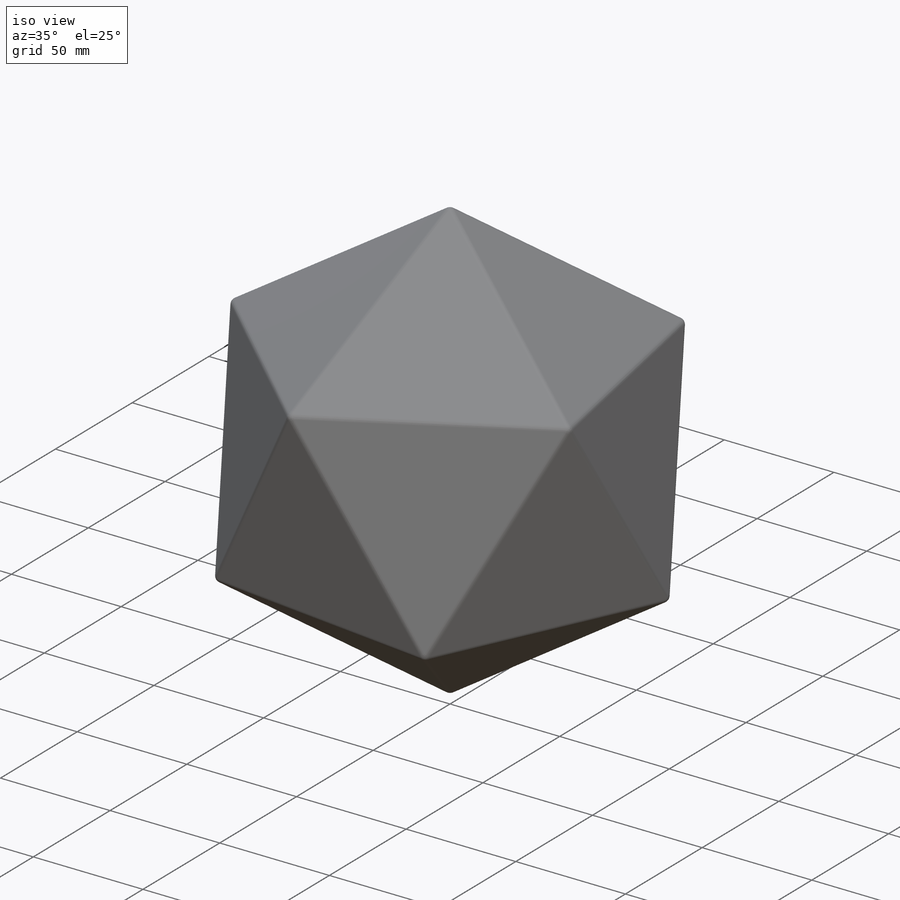
[diagram: iso view]
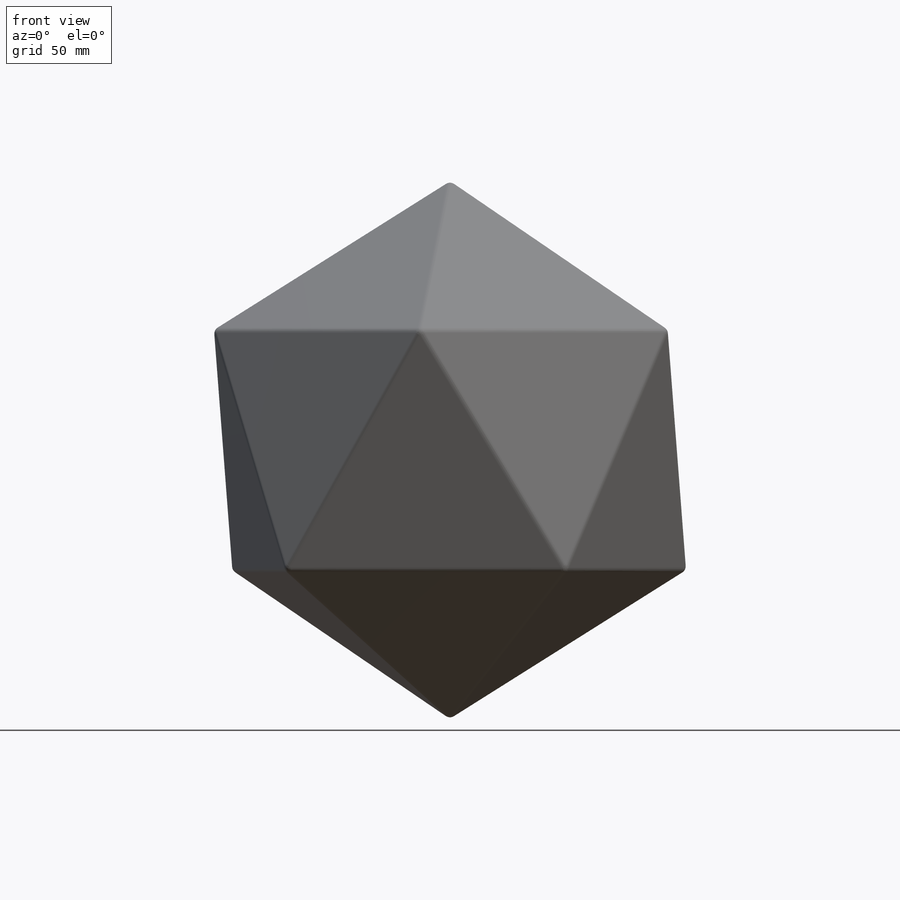
[diagram: front view]
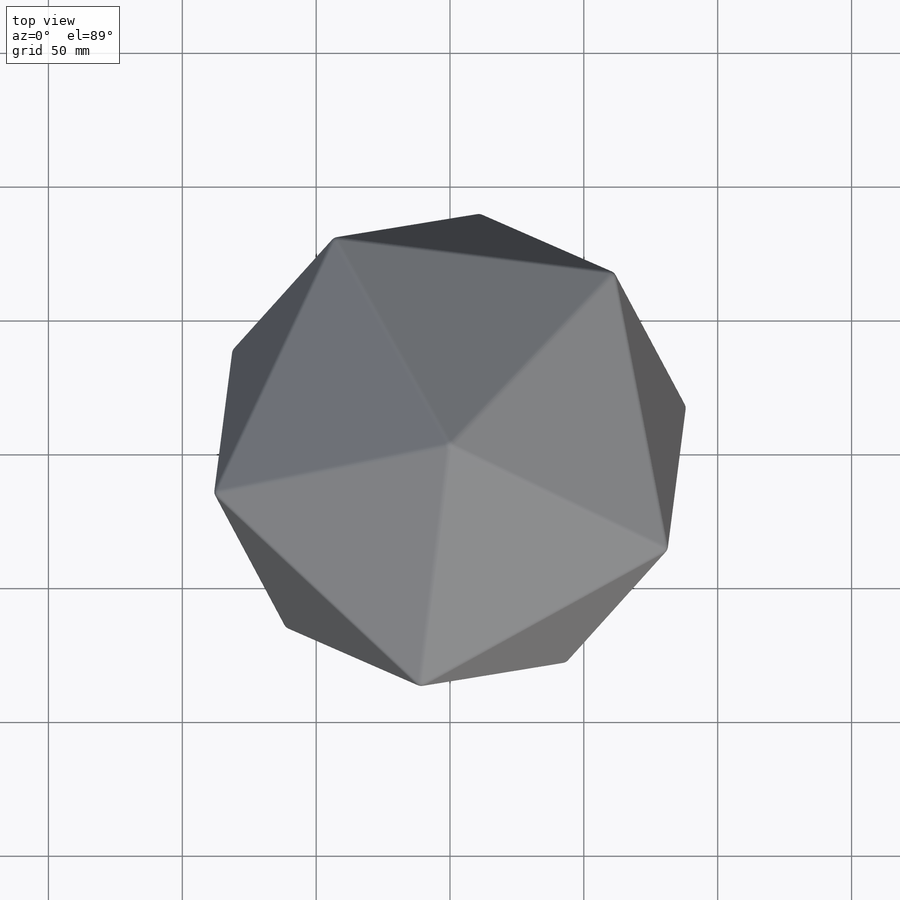
[diagram: top view]
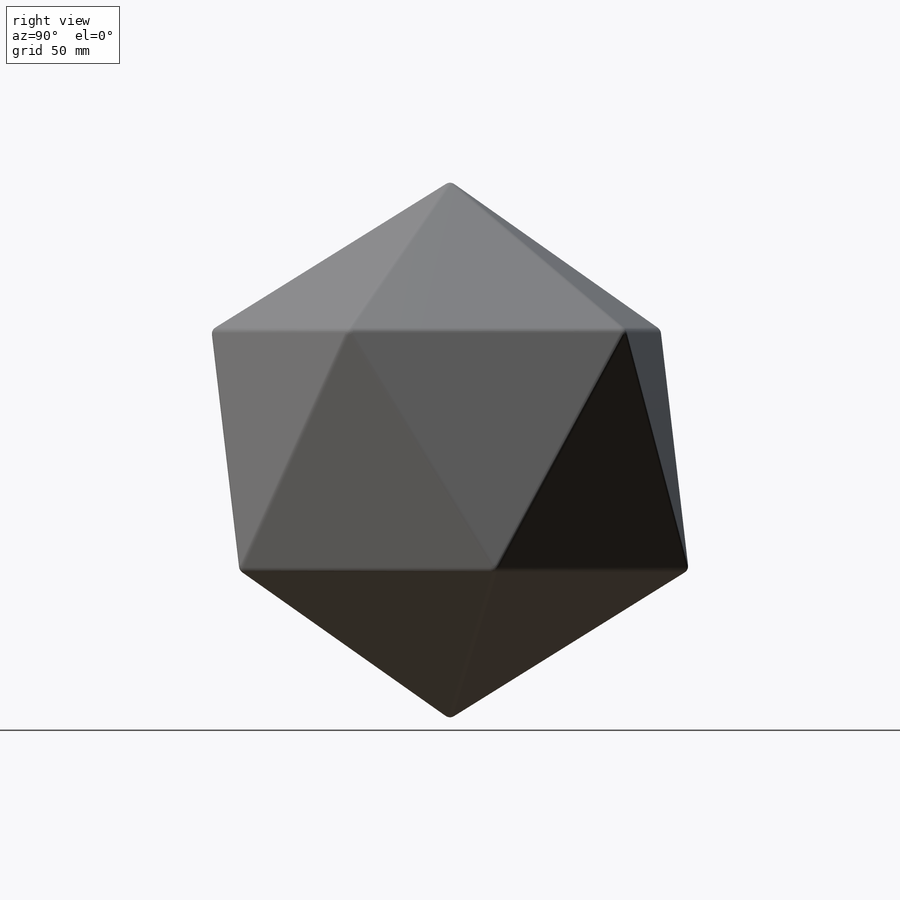
[diagram: right view]
SOLIDWORKS PART (.sldprt)
format: sldprt  version: not decoded by parser v0  size: 483,328 bytes
history: native  units: mm
features: sketch x16, pattern_circular x3, plane x2, extrude x2, material x1, fillet x1, mirror x1 (+12 scaffold rows collapsed; 1 parser-record rows omitted)
feature tree (39):
  scaffold x12  (default folders/planes/origin — collapsed)
  material  "Material <not specified>"
  sketch  "Sketch1"
  sketch  "3DSketch1"
  pattern_circular  "CirPattern2"  Count=5 Angle=360deg
  sketch  "3DSketch1<12>"
  pattern_circular  "CirPattern3"  Count=5 Angle=360deg
  sketch  "3DSketch1<13>"
  sketch  "3DSketch1<15>"
  pattern_circular  "CirPattern4"  Count=5 Angle=360deg
  fillet  "Fillet1"  Radius=3mm
  sketch  "3DSketch2"
  plane  "Plane1"
  sketch  "Mold References"
  plane  "Plane2"  Offset=20mm
  sketch  "Sketch3"
  parser-record x1  (decoder bookkeeping rows leaked as tree rows — omitted from the tree; the rows remain in map.json)
  sketch  "Mold References<5>"
  sketch  "Sketch3<4>"
  sketch  "Mold References<3>"
  sketch  "Sketch3<2>"
  sketch  "Mold References<4>"
  sketch  "Sketch3<3>"
  mirror  "Mirror1"
  sketch  "Sketch4"
  extrude  "Boss-Extrude1"  Depth=30mm
  sketch  "Sketch5"
  extrude  "Boss-Extrude2"  Depth=30mm
decode coverage: 6 of 23 modeling features carry decoded parameters
note: suppression state not decoded; provenance and decode notes live in map.json
